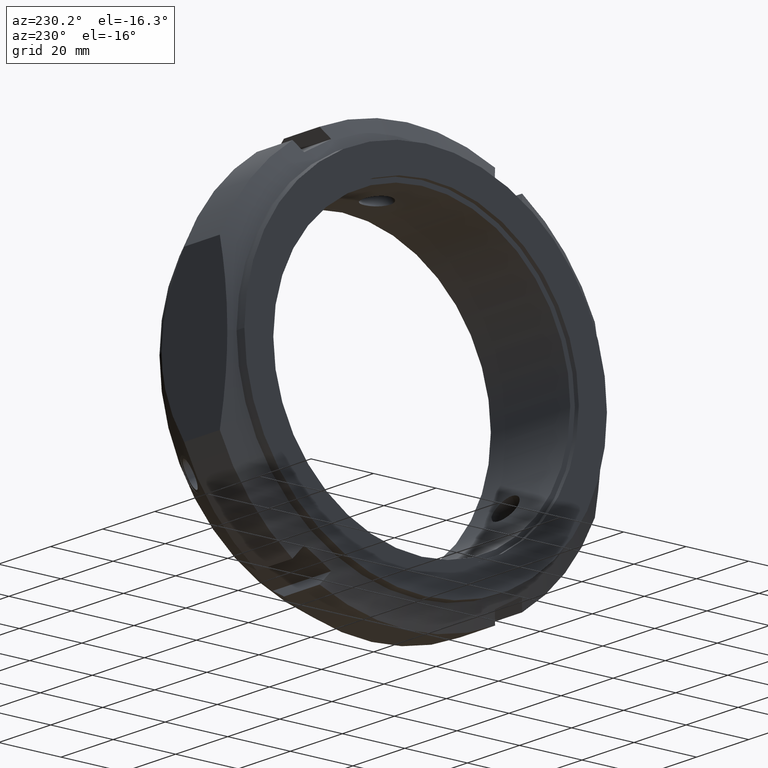
[diagram: clean part render]
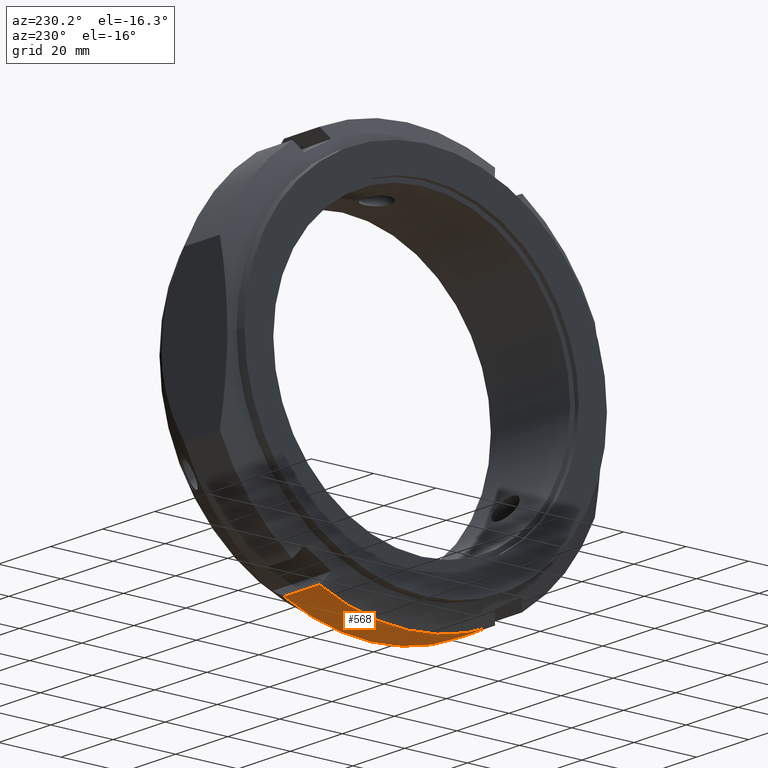
[diagram: same view with one face highlighted and labeled with its STEP entity id]
A machine part, auxiliary view. The second image highlights one B-rep face of the part: STEP entity #568.
In plain terms, the highlighted cylindrical surface (partial cylindrical patch) has radius 65 mm, axis along (1, 0, 0).
Its self-contained STEP definition (entity closure, byte-faithful):
#127=CARTESIAN_POINT('',(7.041451884327348,28.073576473117164,-58.624860801609096));
#128=VERTEX_POINT('',#127);
#143=CARTESIAN_POINT('',(20.74166975080232,28.073576473117154,-58.624860801609088));
#144=VERTEX_POINT('',#143);
#158=CARTESIAN_POINT('',(7.041451884327348,28.073576473117157,-58.624860801609096));
#159=DIRECTION('',(1.0,0.0,0.0));
#160=VECTOR('',#159,13.700217866474972);
#161=LINE('',#158,#160);
#162=EDGE_CURVE('',#128,#144,#161,.T.);
#271=CARTESIAN_POINT('',(7.041451884327349,-28.073576473117107,-58.624860801609124));
#272=VERTEX_POINT('',#271);
#288=CARTESIAN_POINT('',(20.741669750802288,-28.073576473117111,-58.624860801609124));
#289=VERTEX_POINT('',#288);
#290=CARTESIAN_POINT('',(20.741669750802288,-28.073576473117107,-58.624860801609124));
#291=DIRECTION('',(-1.0,0.0,0.0));
#292=VECTOR('',#291,13.70021786647494);
#293=LINE('',#290,#292);
#294=EDGE_CURVE('',#289,#272,#293,.T.);
#375=CARTESIAN_POINT('',(7.041451884327348,0.0,0.0));
#376=DIRECTION('',(1.0,0.0,0.0));
#377=DIRECTION('',(0.0,1.0,0.0));
#378=AXIS2_PLACEMENT_3D('',#375,#376,#377);
#379=CIRCLE('',#378,65.0);
#380=EDGE_CURVE('',#272,#128,#379,.T.);
#551=CARTESIAN_POINT('',(13.891560817564814,0.0,0.0));
#552=DIRECTION('',(1.0,0.0,0.0));
#553=DIRECTION('',(0.0,1.0,0.0));
#554=AXIS2_PLACEMENT_3D('',#551,#552,#553);
#555=CYLINDRICAL_SURFACE('',#554,65.0);
#556=ORIENTED_EDGE('',*,*,#162,.T.);
#557=CARTESIAN_POINT('',(20.741669750802281,0.0,0.0));
#558=DIRECTION('',(1.0,0.0,0.0));
#559=DIRECTION('',(0.0,1.0,0.0));
#560=AXIS2_PLACEMENT_3D('',#557,#558,#559);
#561=CIRCLE('',#560,65.0);
#562=EDGE_CURVE('',#289,#144,#561,.T.);
#563=ORIENTED_EDGE('',*,*,#562,.F.);
#564=ORIENTED_EDGE('',*,*,#294,.T.);
#565=ORIENTED_EDGE('',*,*,#380,.T.);
#566=EDGE_LOOP('',(#556,#563,#564,#565));
#567=FACE_OUTER_BOUND('',#566,.T.);
#568=ADVANCED_FACE('',(#567),#555,.T.);